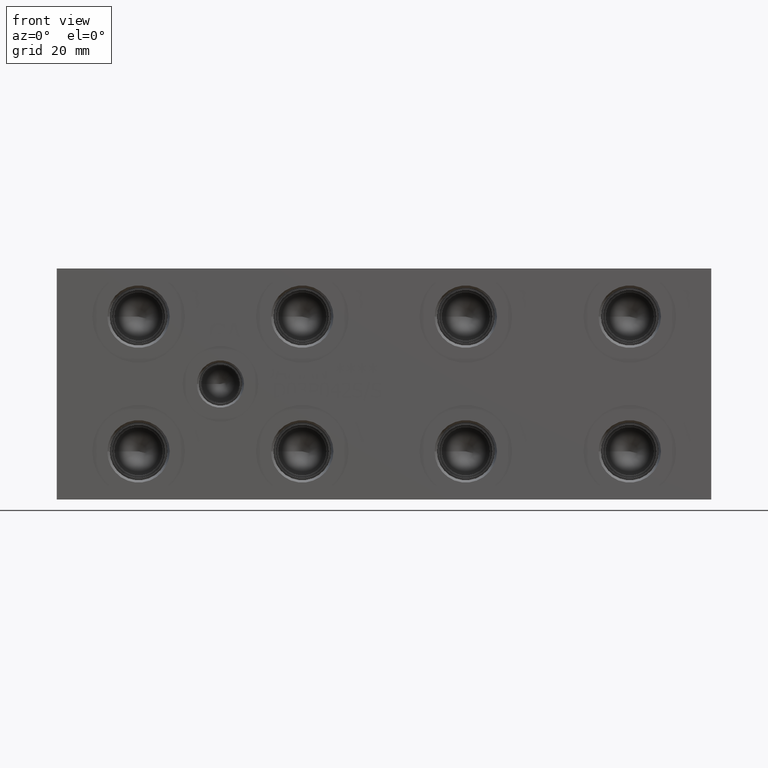
[diagram: clean part render]
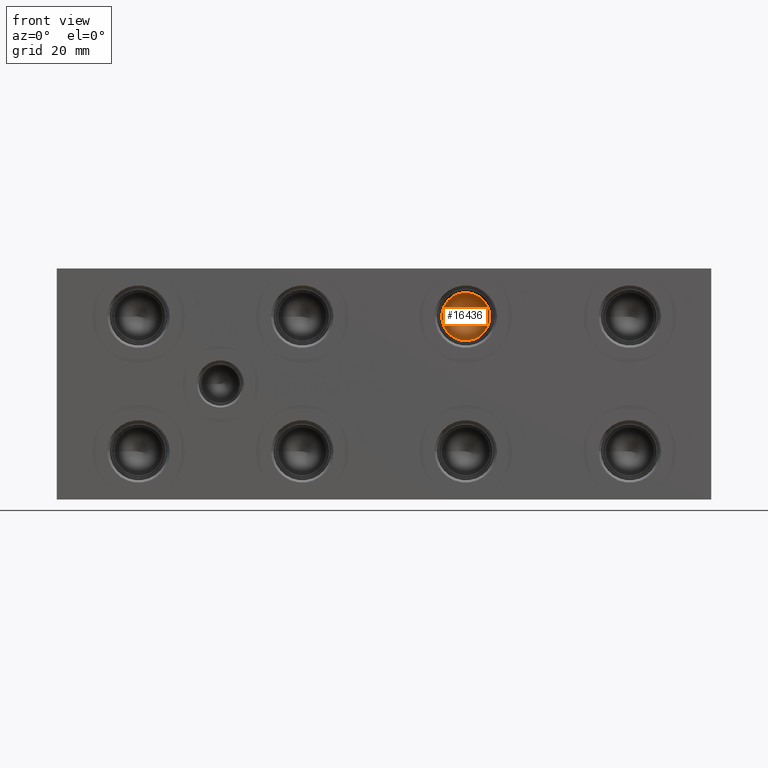
[diagram: same view with one face highlighted and labeled with its STEP entity id]
A machine part, front view. The second image highlights one B-rep face of the part: STEP entity #16436.
In plain terms, the highlighted conical surface has half-angle 60 deg.
Its self-contained STEP definition (entity closure, byte-faithful):
#53=CONICAL_SURFACE('',#17336,3.96875,1.0471975511966);
#459=CIRCLE('',#17337,7.9375);
#460=CIRCLE('',#17338,7.9375);
#2176=FACE_OUTER_BOUND('',#3135,.T.);
#3135=EDGE_LOOP('',(#13872,#13873,#13874,#13875));
#4651=LINE('',#27957,#6072);
#6072=VECTOR('',#20502,3.96875);
#7499=VERTEX_POINT('',#27953);
#7500=VERTEX_POINT('',#27954);
#7501=VERTEX_POINT('',#27956);
#9711=EDGE_CURVE('',#7499,#7500,#459,.T.);
#9712=EDGE_CURVE('',#7500,#7501,#4651,.T.);
#9713=EDGE_CURVE('',#7500,#7499,#460,.T.);
#13872=ORIENTED_EDGE('',*,*,#9711,.T.);
#13873=ORIENTED_EDGE('',*,*,#9712,.T.);
#13874=ORIENTED_EDGE('',*,*,#9712,.F.);
#13875=ORIENTED_EDGE('',*,*,#9713,.T.);
#16436=ADVANCED_FACE('',(#2176),#53,.F.);
#17336=AXIS2_PLACEMENT_3D('',#27952,#20498,#20499);
#17337=AXIS2_PLACEMENT_3D('',#27955,#20500,#20501);
#17338=AXIS2_PLACEMENT_3D('',#27958,#20503,#20504);
#20498=DIRECTION('center_axis',(0.,-1.,0.));
#20499=DIRECTION('ref_axis',(1.,0.,0.));
#20500=DIRECTION('center_axis',(0.,-1.,0.));
#20501=DIRECTION('ref_axis',(1.,0.,0.));
#20502=DIRECTION('',(0.866025403784439,0.5,1.06057523872491E-16));
#20503=DIRECTION('center_axis',(0.,-1.,0.));
#20504=DIRECTION('ref_axis',(1.,0.,0.));
#27952=CARTESIAN_POINT('Origin',(134.9248,25.5239588808463,60.325));
#27953=CARTESIAN_POINT('',(142.8623,23.2326,60.325));
#27954=CARTESIAN_POINT('',(126.9873,23.2326,60.325));
#27955=CARTESIAN_POINT('Origin',(134.9248,23.2326,60.325));
#27956=CARTESIAN_POINT('',(134.9248,27.8153177616927,60.325));
#27957=CARTESIAN_POINT('',(130.95605,25.5239588808463,60.325));
#27958=CARTESIAN_POINT('Origin',(134.9248,23.2326,60.325));